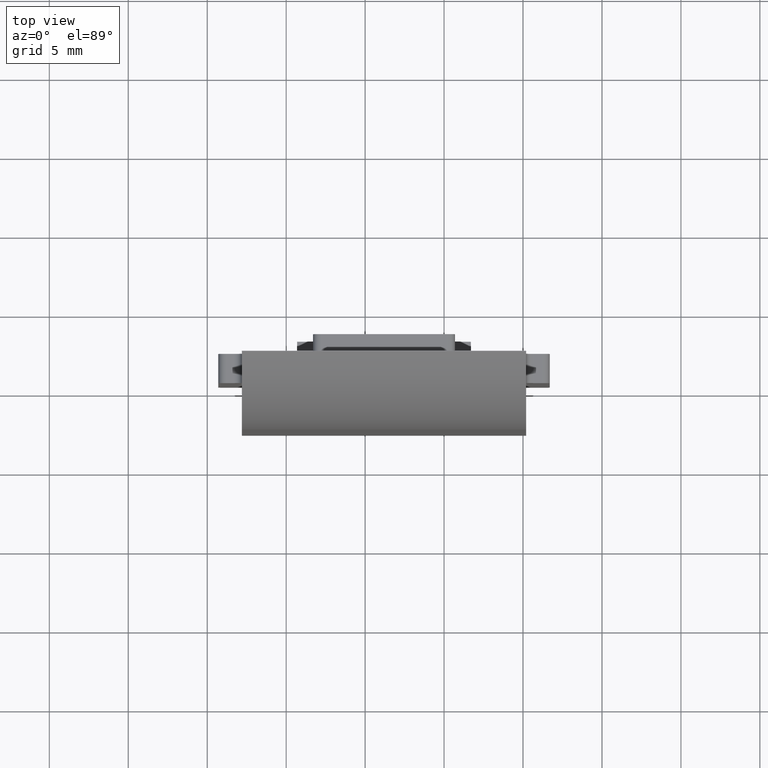
[diagram: clean part render]
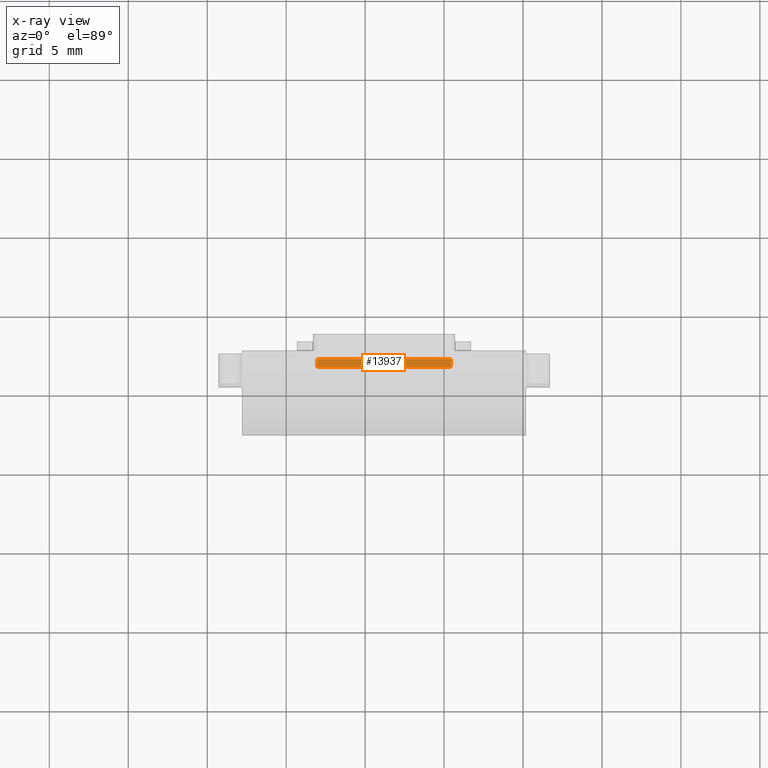
[diagram: x-ray — body ghosted, one internal face saturated and labeled with its STEP entity id]
A machine part, top view, then the same camera in x-ray: the body is ghosted and one INTERNAL B-rep face — a face not visible from any outside direction — is saturated and labeled: STEP entity #13937.
In plain terms, the highlighted planar face has unit normal (0, -0, -1).
Its self-contained STEP definition (entity closure, byte-faithful):
#695 = DIRECTION ( 'NONE',  ( -1.000000000000000000, -0.000000000000000000, -0.000000000000000000 ) ) ;
#1426 = VECTOR ( 'NONE', #11236, 1000.000000000000000 ) ;
#1636 = AXIS2_PLACEMENT_3D ( 'NONE', #17094, #12976, #5194 ) ;
#1716 = CARTESIAN_POINT ( 'NONE',  ( -4.750000000000000888, 4.750000000000001776, 5.799999999999978506 ) ) ;
#1844 = DIRECTION ( 'NONE',  ( -1.000000000000000000, -0.000000000000000000, -0.000000000000000000 ) ) ;
#2447 = CARTESIAN_POINT ( 'NONE',  ( 4.249999999999998224, 4.250000000000001776, 5.799999999999978506 ) ) ;
#3103 = ORIENTED_EDGE ( 'NONE', *, *, #16743, .T. ) ;
#3631 = EDGE_CURVE ( 'NONE', #16577, #8217, #7503, .T. ) ;
#4617 = EDGE_CURVE ( 'NONE', #16577, #9725, #4966, .T. ) ;
#4966 = LINE ( 'NONE', #16477, #1426 ) ;
#5194 = DIRECTION ( 'NONE',  ( 0.000000000000000000, 1.000000000000000000, -4.511634527898065801E-17 ) ) ;
#5757 = EDGE_CURVE ( 'NONE', #11232, #8217, #16785, .T. ) ;
#6495 = VECTOR ( 'NONE', #695, 1000.000000000000000 ) ;
#7503 = LINE ( 'NONE', #14007, #6495 ) ;
#7584 = CARTESIAN_POINT ( 'NONE',  ( 4.249999999999998224, 4.750000000000001776, 5.799999999999978506 ) ) ;
#7675 = PLANE ( 'NONE',  #1636 ) ;
#8217 = VERTEX_POINT ( 'NONE', #15933 ) ;
#8302 = ORIENTED_EDGE ( 'NONE', *, *, #5757, .T. ) ;
#8885 = CARTESIAN_POINT ( 'NONE',  ( -4.250000000000000000, 4.750000000000001776, 5.799999999999978506 ) ) ;
#9725 = VERTEX_POINT ( 'NONE', #7584 ) ;
#10142 = ORIENTED_EDGE ( 'NONE', *, *, #3631, .F. ) ;
#10148 = DIRECTION ( 'NONE',  ( -0.000000000000000000, -1.000000000000000000, 4.511634527898065801E-17 ) ) ;
#10357 = VECTOR ( 'NONE', #10148, 1000.000000000000000 ) ;
#10499 = LINE ( 'NONE', #1716, #14791 ) ;
#11232 = VERTEX_POINT ( 'NONE', #8885 ) ;
#11236 = DIRECTION ( 'NONE',  ( 0.000000000000000000, 1.000000000000000000, -4.511634527898065801E-17 ) ) ;
#12104 = FACE_OUTER_BOUND ( 'NONE', #14462, .T. ) ;
#12976 = DIRECTION ( 'NONE',  ( 0.000000000000000000, -4.511634527898065801E-17, -1.000000000000000000 ) ) ;
#13270 = CARTESIAN_POINT ( 'NONE',  ( -4.250000000000000000, 4.250000000000001776, 5.799999999999978506 ) ) ;
#13937 = ADVANCED_FACE ( 'NONE', ( #12104 ), #7675, .F. ) ;
#14007 = CARTESIAN_POINT ( 'NONE',  ( -4.750000000000000888, 4.250000000000001776, 5.799999999999978506 ) ) ;
#14462 = EDGE_LOOP ( 'NONE', ( #3103, #8302, #10142, #16702 ) ) ;
#14791 = VECTOR ( 'NONE', #1844, 1000.000000000000000 ) ;
#15933 = CARTESIAN_POINT ( 'NONE',  ( -4.250000000000000000, 4.250000000000001776, 5.799999999999978506 ) ) ;
#16477 = CARTESIAN_POINT ( 'NONE',  ( 4.249999999999998224, 4.750000000000000888, 5.799999999999978506 ) ) ;
#16577 = VERTEX_POINT ( 'NONE', #2447 ) ;
#16702 = ORIENTED_EDGE ( 'NONE', *, *, #4617, .T. ) ;
#16743 = EDGE_CURVE ( 'NONE', #9725, #11232, #10499, .T. ) ;
#16785 = LINE ( 'NONE', #13270, #10357 ) ;
#17094 = CARTESIAN_POINT ( 'NONE',  ( -4.750000000000000888, 4.250000000000001776, 5.799999999999978506 ) ) ;